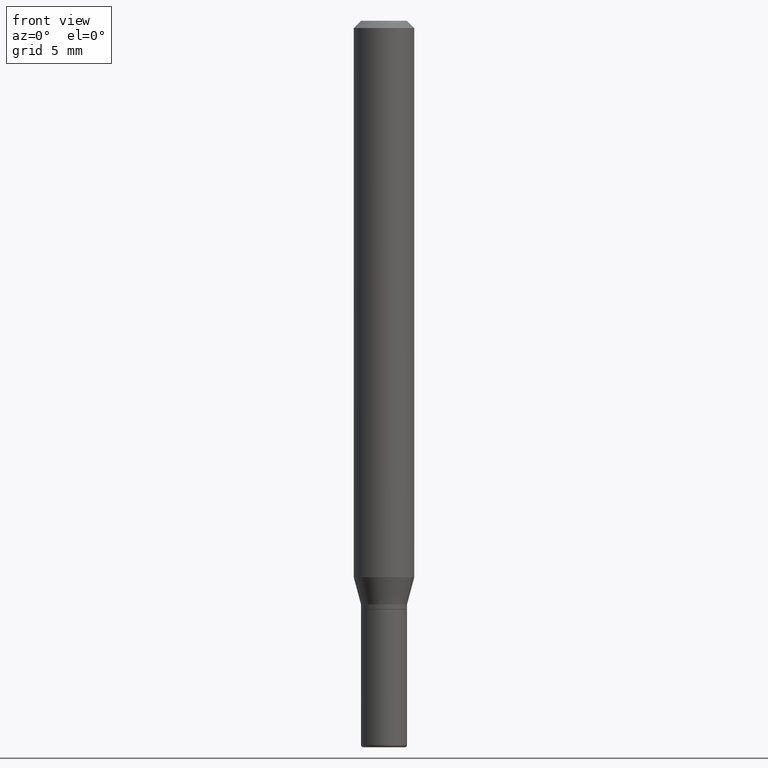
[diagram: clean part render]
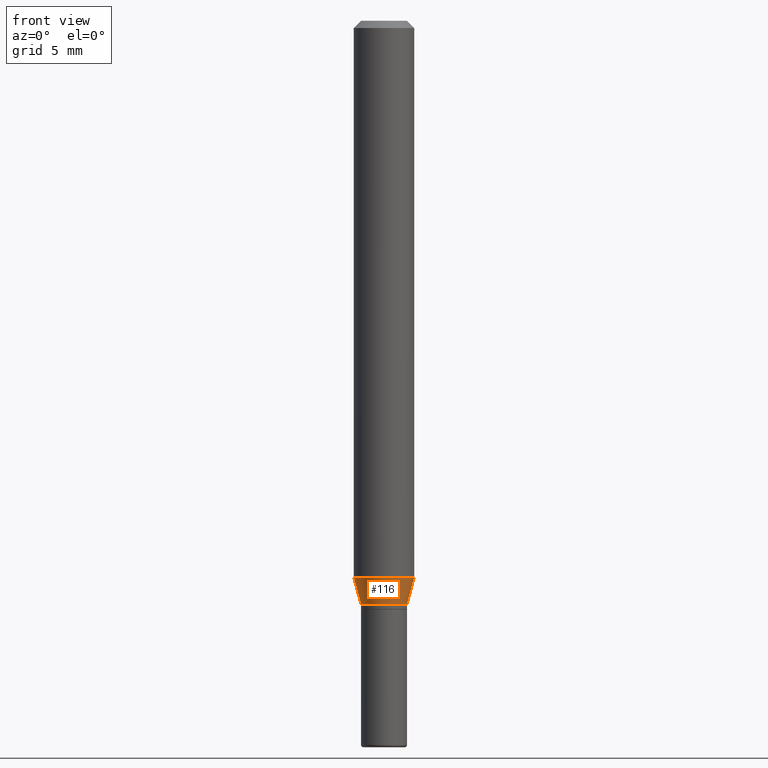
[diagram: same view with one face highlighted and labeled with its STEP entity id]
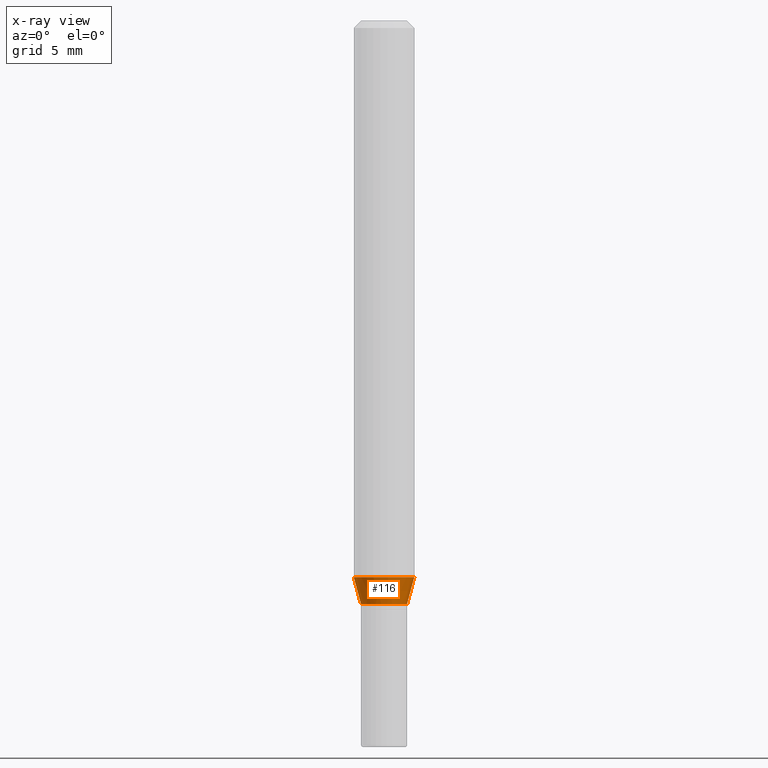
[diagram: x-ray of the same camera — body ghosted, the highlighted face saturated]
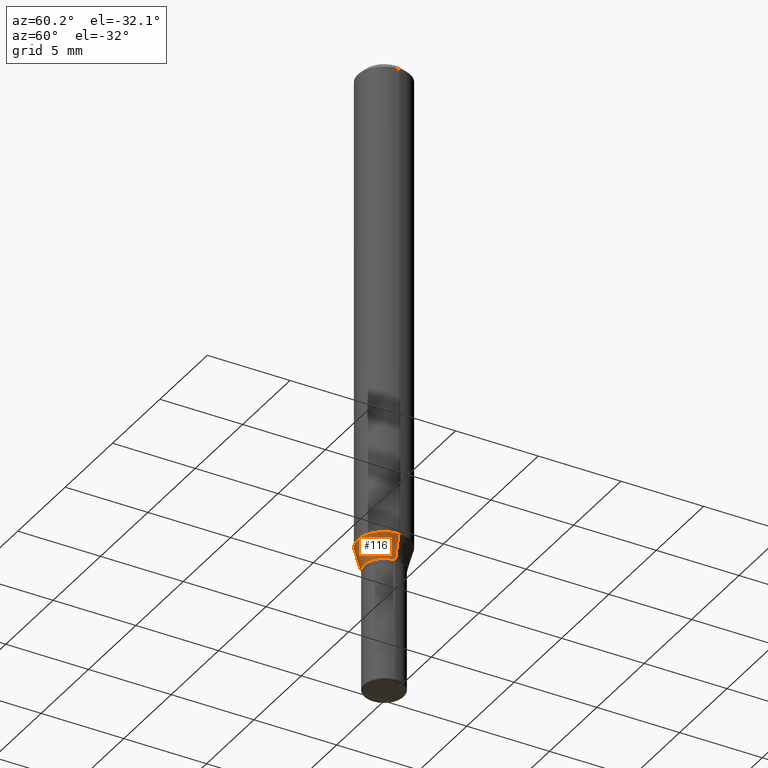
[diagram: same view with one face highlighted and labeled with its STEP entity id]
A machine part, front view. The second image highlights one B-rep face of the part: STEP entity #116.
The next image is the same camera in x-ray: the body ghosted, the highlighted face saturated — about 0% of this face is hidden behind the body in this view.
A second angle (auxiliary view) of the same face is appended — the face is thin or edge-on in the first view.
In plain terms, the highlighted conical surface has half-angle 15 deg.
Its self-contained STEP definition (entity closure, byte-faithful):
#64 = CIRCLE ( 'NONE', #276, 0.04749999999999993811 ) ;
#86 = CARTESIAN_POINT ( 'NONE',  ( -0.06250000000000000000, -3.567690017202308146E-15, -1.149019237886466538 ) ) ;
#98 = VERTEX_POINT ( 'NONE', #86 ) ;
#108 = EDGE_CURVE ( 'NONE', #192, #98, #318, .T. ) ;
#114 = VECTOR ( 'NONE', #220, 39.37007874015748854 ) ;
#115 = CARTESIAN_POINT ( 'NONE',  ( -0.04749999999999993811, -3.869727213819942557E-15, -1.204999999999999849 ) ) ;
#116 = ADVANCED_FACE ( 'NONE', ( #398 ), #468, .T. ) ;
#125 = DIRECTION ( 'NONE',  ( -2.445468806185136597E-29, 3.491481338843145583E-15, 1.000000000000000000 ) ) ;
#140 = EDGE_LOOP ( 'NONE', ( #337, #257, #146, #420 ) ) ;
#146 = ORIENTED_EDGE ( 'NONE', *, *, #362, .T. ) ;
#161 = CARTESIAN_POINT ( 'NONE',  ( 0.06250000000000000000, -4.448214394407762432E-15, -1.149019237886466538 ) ) ;
#163 = CARTESIAN_POINT ( 'NONE',  ( 2.946789911453088792E-29, -4.207235013305990050E-15, -1.204999999999999849 ) ) ;
#173 = DIRECTION ( 'NONE',  ( -2.445468806185136597E-29, 3.491481338843145583E-15, 1.000000000000000000 ) ) ;
#180 = VECTOR ( 'NONE', #271, 39.37007874015748854 ) ;
#182 = VERTEX_POINT ( 'NONE', #161 ) ;
#192 = VERTEX_POINT ( 'NONE', #326 ) ;
#194 = CARTESIAN_POINT ( 'NONE',  ( 2.946789911453088792E-29, -4.207235013305990050E-15, -1.204999999999999849 ) ) ;
#220 = DIRECTION ( 'NONE',  ( 0.2588190451025206285, 1.565188264969627095E-15, 0.9659258262890682012 ) ) ;
#252 = CARTESIAN_POINT ( 'NONE',  ( 0.04749999999999993811, -4.538925740496087561E-15, -1.204999999999999849 ) ) ;
#257 = ORIENTED_EDGE ( 'NONE', *, *, #494, .T. ) ;
#266 = EDGE_CURVE ( 'NONE', #98, #182, #454, .T. ) ;
#271 = DIRECTION ( 'NONE',  ( -0.2588190451025206285, 5.211531920934544731E-15, 0.9659258262890682012 ) ) ;
#276 = AXIS2_PLACEMENT_3D ( 'NONE', #163, #324, #438 ) ;
#281 = DIRECTION ( 'NONE',  ( 1.000000000000000000, -6.982962677686270655E-15, 0.000000000000000000 ) ) ;
#300 = CARTESIAN_POINT ( 'NONE',  ( 2.809890703957972484E-29, -4.011779227052370762E-15, -1.149019237886466538 ) ) ;
#301 = AXIS2_PLACEMENT_3D ( 'NONE', #300, #173, #304 ) ;
#304 = DIRECTION ( 'NONE',  ( 1.000000000000000000, -6.982962677686270655E-15, 0.000000000000000000 ) ) ;
#318 = LINE ( 'NONE', #115, #180 ) ;
#321 = AXIS2_PLACEMENT_3D ( 'NONE', #194, #125, #281 ) ;
#324 = DIRECTION ( 'NONE',  ( -2.445468806185136597E-29, 3.491481338843145583E-15, 1.000000000000000000 ) ) ;
#326 = CARTESIAN_POINT ( 'NONE',  ( -0.04749999999999993811, -3.718708615511125351E-15, -1.204999999999999849 ) ) ;
#337 = ORIENTED_EDGE ( 'NONE', *, *, #108, .F. ) ;
#362 = EDGE_CURVE ( 'NONE', #463, #182, #443, .T. ) ;
#398 = FACE_OUTER_BOUND ( 'NONE', #140, .T. ) ;
#410 = CARTESIAN_POINT ( 'NONE',  ( 0.04749999999999993811, -4.538925740496087561E-15, -1.204999999999999849 ) ) ;
#420 = ORIENTED_EDGE ( 'NONE', *, *, #266, .F. ) ;
#438 = DIRECTION ( 'NONE',  ( 1.000000000000000000, -6.982962677686270655E-15, 0.000000000000000000 ) ) ;
#443 = LINE ( 'NONE', #252, #114 ) ;
#454 = CIRCLE ( 'NONE', #301, 0.06250000000000000000 ) ;
#463 = VERTEX_POINT ( 'NONE', #410 ) ;
#468 = CONICAL_SURFACE ( 'NONE', #321, 0.04749999999999993811, 0.2617993877991493523 ) ;
#494 = EDGE_CURVE ( 'NONE', #192, #463, #64, .T. ) ;